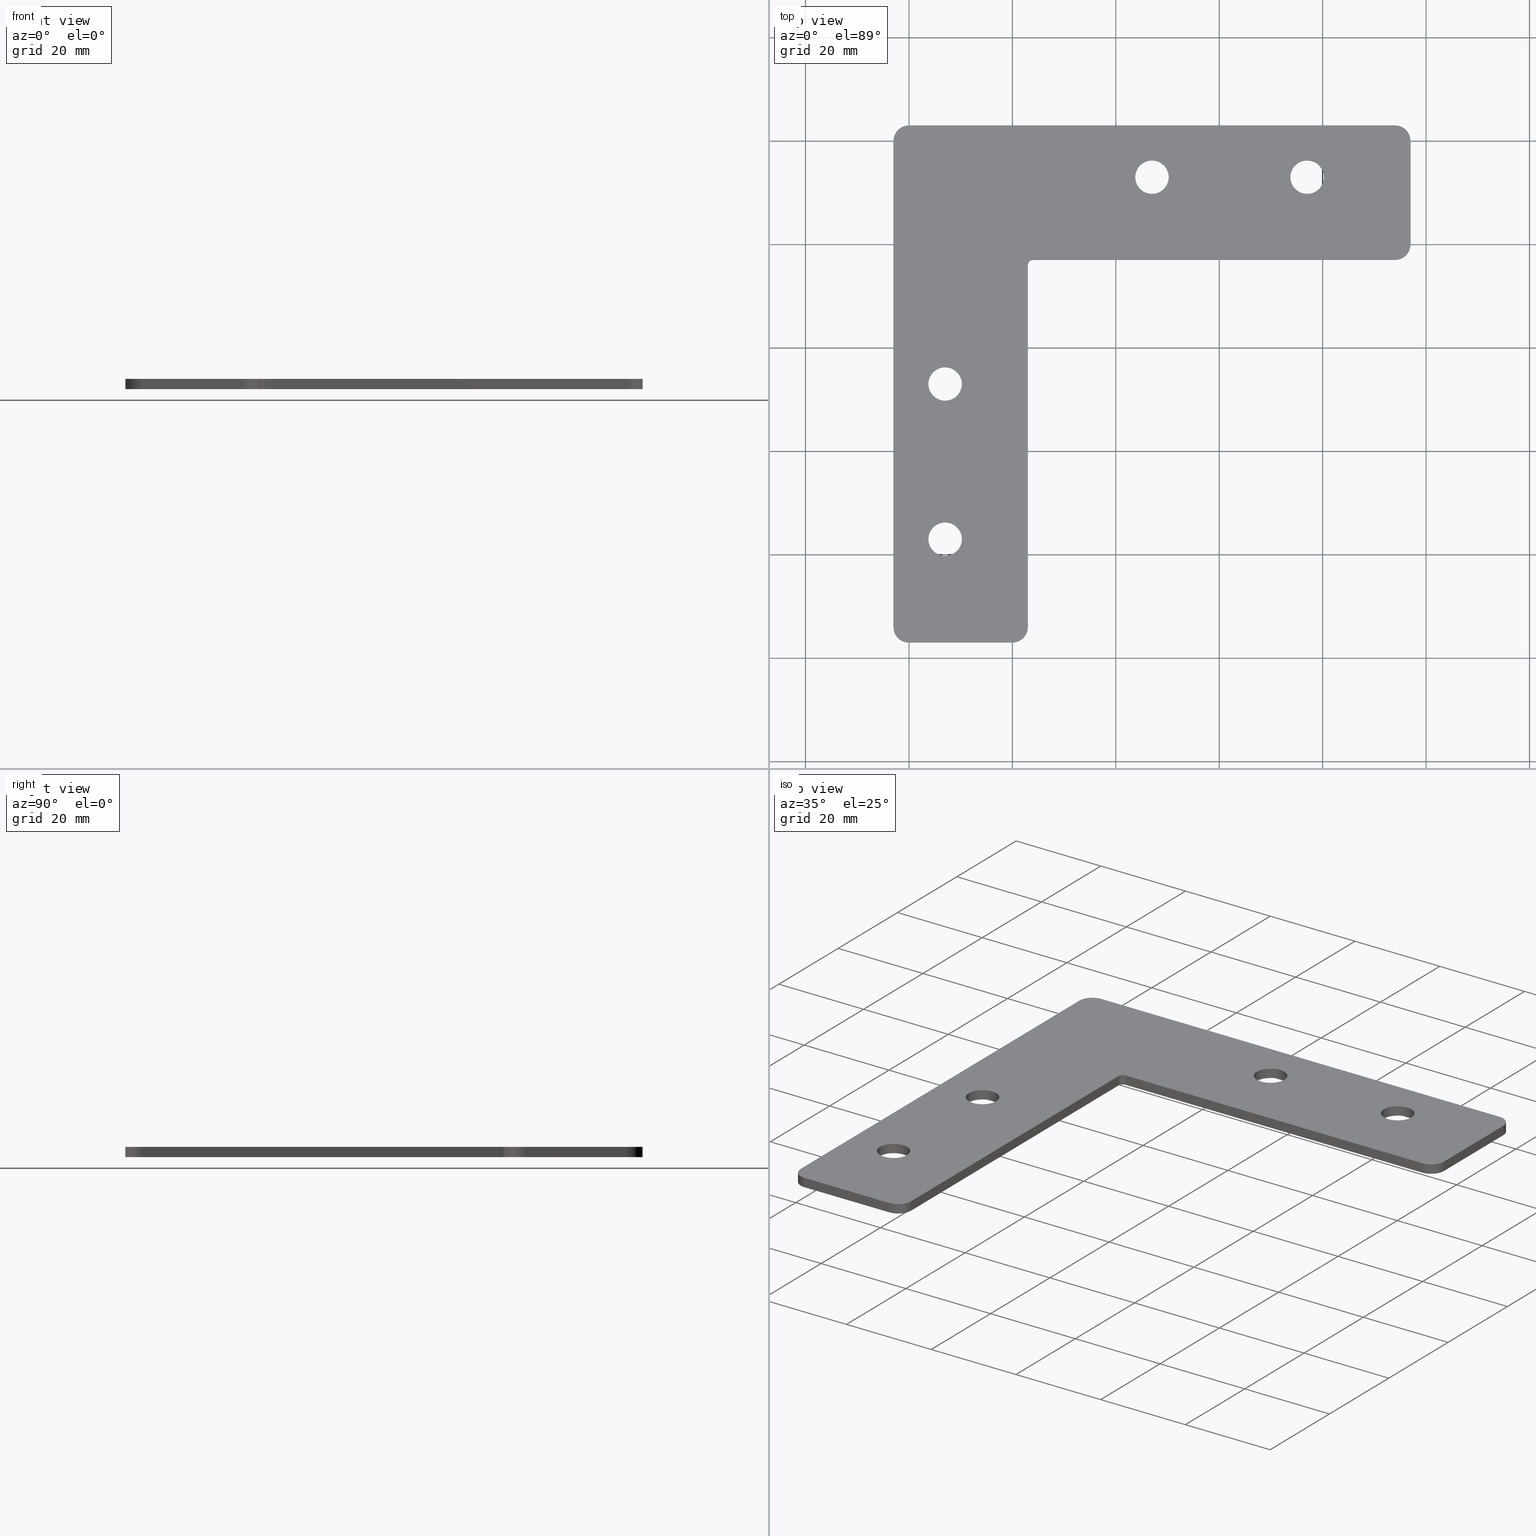
[diagram: canonical four-view strip — front | top / right | iso, engineering-drawing reading convention]
A machine part, canonical four-view strip (front | top / right | iso — engineering-drawing reading convention). The complete STEP part file that produces these views, byte-faithful:
ISO-10303-21;
HEADER;
/* Generated by software containing ST-Developer
 * from STEP Tools, Inc. (www.steptools.com) 
 */

FILE_DESCRIPTION(
/* description */ ('ANGOLARE DI RINFORZO 100X100 SP.2 ZINC.'),
/* implementation_level */ '2;1');

FILE_NAME(
/* name */ 
'C:\\Users\\tecnico7\\Desktop\\tavole temporanee\\DANXX0000097.stp',
/* time_stamp */ '2022-11-16T16:44:12+01:00',
/* author */ ('tecnico7'),
/* organization */ (''),
/* preprocessor_version */ 'ST-DEVELOPER v18.1',
/* originating_system */ 'Autodesk Inventor 2022',
/* authorisation */ '');

FILE_SCHEMA (('AUTOMOTIVE_DESIGN { 1 0 10303 214 3 1 1 }'));
ENDSEC;

DATA;
#10=MECHANICAL_DESIGN_GEOMETRIC_PRESENTATION_REPRESENTATION('',(#13),#624);
#11=SHAPE_REPRESENTATION_RELATIONSHIP('SRR','None',#631,#12);
#12=ADVANCED_BREP_SHAPE_REPRESENTATION('',(#14),#623);
#13=STYLED_ITEM('',(#640),#14);
#14=MANIFOLD_SOLID_BREP('Solido1',#355);
#15=FACE_BOUND('',#58,.T.);
#16=FACE_BOUND('',#59,.T.);
#17=FACE_BOUND('',#60,.T.);
#18=FACE_BOUND('',#61,.T.);
#19=FACE_BOUND('',#71,.T.);
#20=FACE_BOUND('',#72,.T.);
#21=FACE_BOUND('',#73,.T.);
#22=FACE_BOUND('',#74,.T.);
#23=PLANE('',#393);
#24=PLANE('',#397);
#25=PLANE('',#398);
#26=PLANE('',#407);
#27=PLANE('',#410);
#28=PLANE('',#413);
#29=PLANE('',#414);
#30=PLANE('',#415);
#31=FACE_OUTER_BOUND('',#49,.T.);
#32=FACE_OUTER_BOUND('',#50,.T.);
#33=FACE_OUTER_BOUND('',#51,.T.);
#34=FACE_OUTER_BOUND('',#52,.T.);
#35=FACE_OUTER_BOUND('',#53,.T.);
#36=FACE_OUTER_BOUND('',#54,.T.);
#37=FACE_OUTER_BOUND('',#55,.T.);
#38=FACE_OUTER_BOUND('',#56,.T.);
#39=FACE_OUTER_BOUND('',#57,.T.);
#40=FACE_OUTER_BOUND('',#62,.T.);
#41=FACE_OUTER_BOUND('',#63,.T.);
#42=FACE_OUTER_BOUND('',#64,.T.);
#43=FACE_OUTER_BOUND('',#65,.T.);
#44=FACE_OUTER_BOUND('',#66,.T.);
#45=FACE_OUTER_BOUND('',#67,.T.);
#46=FACE_OUTER_BOUND('',#68,.T.);
#47=FACE_OUTER_BOUND('',#69,.T.);
#48=FACE_OUTER_BOUND('',#70,.T.);
#49=EDGE_LOOP('',(#231,#232,#233,#234));
#50=EDGE_LOOP('',(#235,#236,#237,#238));
#51=EDGE_LOOP('',(#239,#240,#241,#242));
#52=EDGE_LOOP('',(#243,#244,#245,#246));
#53=EDGE_LOOP('',(#247,#248,#249,#250));
#54=EDGE_LOOP('',(#251,#252,#253,#254));
#55=EDGE_LOOP('',(#255,#256,#257,#258));
#56=EDGE_LOOP('',(#259,#260,#261,#262));
#57=EDGE_LOOP('',(#263,#264,#265,#266,#267,#268,#269,#270,#271,#272,#273,
#274));
#58=EDGE_LOOP('',(#275));
#59=EDGE_LOOP('',(#276));
#60=EDGE_LOOP('',(#277));
#61=EDGE_LOOP('',(#278));
#62=EDGE_LOOP('',(#279,#280,#281,#282));
#63=EDGE_LOOP('',(#283,#284,#285,#286));
#64=EDGE_LOOP('',(#287,#288,#289,#290));
#65=EDGE_LOOP('',(#291,#292,#293,#294));
#66=EDGE_LOOP('',(#295,#296,#297,#298));
#67=EDGE_LOOP('',(#299,#300,#301,#302));
#68=EDGE_LOOP('',(#303,#304,#305,#306));
#69=EDGE_LOOP('',(#307,#308,#309,#310));
#70=EDGE_LOOP('',(#311,#312,#313,#314,#315,#316,#317,#318,#319,#320,#321,
#322));
#71=EDGE_LOOP('',(#323));
#72=EDGE_LOOP('',(#324));
#73=EDGE_LOOP('',(#325));
#74=EDGE_LOOP('',(#326));
#75=LINE('',#527,#103);
#76=LINE('',#533,#104);
#77=LINE('',#539,#105);
#78=LINE('',#545,#106);
#79=LINE('',#552,#107);
#80=LINE('',#555,#108);
#81=LINE('',#558,#109);
#82=LINE('',#560,#110);
#83=LINE('',#561,#111);
#84=LINE('',#567,#112);
#85=LINE('',#570,#113);
#86=LINE('',#573,#114);
#87=LINE('',#575,#115);
#88=LINE('',#576,#116);
#89=LINE('',#579,#117);
#90=LINE('',#583,#118);
#91=LINE('',#587,#119);
#92=LINE('',#590,#120);
#93=LINE('',#598,#121);
#94=LINE('',#599,#122);
#95=LINE('',#601,#123);
#96=LINE('',#604,#124);
#97=LINE('',#607,#125);
#98=LINE('',#610,#126);
#99=LINE('',#611,#127);
#100=LINE('',#614,#128);
#101=LINE('',#617,#129);
#102=LINE('',#619,#130);
#103=VECTOR('',#422,3.25);
#104=VECTOR('',#429,3.25);
#105=VECTOR('',#436,3.25);
#106=VECTOR('',#443,3.25);
#107=VECTOR('',#450,10.);
#108=VECTOR('',#453,10.);
#109=VECTOR('',#456,10.);
#110=VECTOR('',#457,10.);
#111=VECTOR('',#458,10.);
#112=VECTOR('',#463,10.);
#113=VECTOR('',#466,10.);
#114=VECTOR('',#469,10.);
#115=VECTOR('',#470,10.);
#116=VECTOR('',#471,10.);
#117=VECTOR('',#474,10.);
#118=VECTOR('',#477,10.);
#119=VECTOR('',#480,10.);
#120=VECTOR('',#483,10.);
#121=VECTOR('',#494,10.);
#122=VECTOR('',#495,10.);
#123=VECTOR('',#498,10.);
#124=VECTOR('',#501,10.);
#125=VECTOR('',#504,10.);
#126=VECTOR('',#507,10.);
#127=VECTOR('',#508,10.);
#128=VECTOR('',#511,10.);
#129=VECTOR('',#516,10.);
#130=VECTOR('',#519,10.);
#131=CIRCLE('',#379,3.25);
#132=CIRCLE('',#380,3.25);
#133=CIRCLE('',#382,3.25);
#134=CIRCLE('',#383,3.25);
#135=CIRCLE('',#385,3.25);
#136=CIRCLE('',#386,3.25);
#137=CIRCLE('',#388,3.25);
#138=CIRCLE('',#389,3.25);
#139=CIRCLE('',#391,1.);
#140=CIRCLE('',#392,1.);
#141=CIRCLE('',#395,3.);
#142=CIRCLE('',#396,3.);
#143=CIRCLE('',#399,3.);
#144=CIRCLE('',#400,3.);
#145=CIRCLE('',#401,3.);
#146=CIRCLE('',#402,3.);
#147=CIRCLE('',#404,3.);
#148=CIRCLE('',#406,3.);
#149=CIRCLE('',#409,3.);
#150=CIRCLE('',#412,3.);
#151=VERTEX_POINT('',#524);
#152=VERTEX_POINT('',#526);
#153=VERTEX_POINT('',#530);
#154=VERTEX_POINT('',#532);
#155=VERTEX_POINT('',#536);
#156=VERTEX_POINT('',#538);
#157=VERTEX_POINT('',#542);
#158=VERTEX_POINT('',#544);
#159=VERTEX_POINT('',#548);
#160=VERTEX_POINT('',#549);
#161=VERTEX_POINT('',#551);
#162=VERTEX_POINT('',#553);
#163=VERTEX_POINT('',#557);
#164=VERTEX_POINT('',#559);
#165=VERTEX_POINT('',#563);
#166=VERTEX_POINT('',#564);
#167=VERTEX_POINT('',#566);
#168=VERTEX_POINT('',#568);
#169=VERTEX_POINT('',#572);
#170=VERTEX_POINT('',#574);
#171=VERTEX_POINT('',#578);
#172=VERTEX_POINT('',#580);
#173=VERTEX_POINT('',#582);
#174=VERTEX_POINT('',#584);
#175=VERTEX_POINT('',#586);
#176=VERTEX_POINT('',#588);
#177=VERTEX_POINT('',#595);
#178=VERTEX_POINT('',#596);
#179=VERTEX_POINT('',#603);
#180=VERTEX_POINT('',#605);
#181=VERTEX_POINT('',#609);
#182=VERTEX_POINT('',#613);
#183=EDGE_CURVE('',#151,#151,#131,.T.);
#184=EDGE_CURVE('',#151,#152,#75,.T.);
#185=EDGE_CURVE('',#152,#152,#132,.T.);
#186=EDGE_CURVE('',#153,#153,#133,.T.);
#187=EDGE_CURVE('',#153,#154,#76,.T.);
#188=EDGE_CURVE('',#154,#154,#134,.T.);
#189=EDGE_CURVE('',#155,#155,#135,.T.);
#190=EDGE_CURVE('',#155,#156,#77,.T.);
#191=EDGE_CURVE('',#156,#156,#136,.T.);
#192=EDGE_CURVE('',#157,#157,#137,.T.);
#193=EDGE_CURVE('',#157,#158,#78,.T.);
#194=EDGE_CURVE('',#158,#158,#138,.T.);
#195=EDGE_CURVE('',#159,#160,#139,.T.);
#196=EDGE_CURVE('',#160,#161,#79,.T.);
#197=EDGE_CURVE('',#161,#162,#140,.T.);
#198=EDGE_CURVE('',#162,#159,#80,.T.);
#199=EDGE_CURVE('',#163,#160,#81,.T.);
#200=EDGE_CURVE('',#164,#163,#82,.T.);
#201=EDGE_CURVE('',#161,#164,#83,.T.);
#202=EDGE_CURVE('',#165,#166,#141,.T.);
#203=EDGE_CURVE('',#166,#167,#84,.T.);
#204=EDGE_CURVE('',#167,#168,#142,.T.);
#205=EDGE_CURVE('',#168,#165,#85,.T.);
#206=EDGE_CURVE('',#169,#166,#86,.T.);
#207=EDGE_CURVE('',#170,#169,#87,.T.);
#208=EDGE_CURVE('',#167,#170,#88,.T.);
#209=EDGE_CURVE('',#165,#171,#89,.T.);
#210=EDGE_CURVE('',#172,#171,#143,.T.);
#211=EDGE_CURVE('',#172,#173,#90,.T.);
#212=EDGE_CURVE('',#174,#173,#144,.T.);
#213=EDGE_CURVE('',#174,#175,#91,.T.);
#214=EDGE_CURVE('',#176,#175,#145,.T.);
#215=EDGE_CURVE('',#176,#162,#92,.T.);
#216=EDGE_CURVE('',#169,#164,#146,.T.);
#217=EDGE_CURVE('',#163,#170,#147,.T.);
#218=EDGE_CURVE('',#177,#178,#148,.T.);
#219=EDGE_CURVE('',#178,#172,#93,.T.);
#220=EDGE_CURVE('',#171,#177,#94,.T.);
#221=EDGE_CURVE('',#177,#168,#95,.T.);
#222=EDGE_CURVE('',#175,#179,#96,.T.);
#223=EDGE_CURVE('',#179,#180,#149,.T.);
#224=EDGE_CURVE('',#180,#176,#97,.T.);
#225=EDGE_CURVE('',#181,#174,#98,.T.);
#226=EDGE_CURVE('',#179,#181,#99,.T.);
#227=EDGE_CURVE('',#173,#182,#100,.T.);
#228=EDGE_CURVE('',#182,#181,#150,.T.);
#229=EDGE_CURVE('',#182,#178,#101,.T.);
#230=EDGE_CURVE('',#159,#180,#102,.T.);
#231=ORIENTED_EDGE('',*,*,#183,.F.);
#232=ORIENTED_EDGE('',*,*,#184,.T.);
#233=ORIENTED_EDGE('',*,*,#185,.F.);
#234=ORIENTED_EDGE('',*,*,#184,.F.);
#235=ORIENTED_EDGE('',*,*,#186,.F.);
#236=ORIENTED_EDGE('',*,*,#187,.T.);
#237=ORIENTED_EDGE('',*,*,#188,.F.);
#238=ORIENTED_EDGE('',*,*,#187,.F.);
#239=ORIENTED_EDGE('',*,*,#189,.F.);
#240=ORIENTED_EDGE('',*,*,#190,.T.);
#241=ORIENTED_EDGE('',*,*,#191,.F.);
#242=ORIENTED_EDGE('',*,*,#190,.F.);
#243=ORIENTED_EDGE('',*,*,#192,.F.);
#244=ORIENTED_EDGE('',*,*,#193,.T.);
#245=ORIENTED_EDGE('',*,*,#194,.F.);
#246=ORIENTED_EDGE('',*,*,#193,.F.);
#247=ORIENTED_EDGE('',*,*,#195,.T.);
#248=ORIENTED_EDGE('',*,*,#196,.T.);
#249=ORIENTED_EDGE('',*,*,#197,.T.);
#250=ORIENTED_EDGE('',*,*,#198,.T.);
#251=ORIENTED_EDGE('',*,*,#196,.F.);
#252=ORIENTED_EDGE('',*,*,#199,.F.);
#253=ORIENTED_EDGE('',*,*,#200,.F.);
#254=ORIENTED_EDGE('',*,*,#201,.F.);
#255=ORIENTED_EDGE('',*,*,#202,.T.);
#256=ORIENTED_EDGE('',*,*,#203,.T.);
#257=ORIENTED_EDGE('',*,*,#204,.T.);
#258=ORIENTED_EDGE('',*,*,#205,.T.);
#259=ORIENTED_EDGE('',*,*,#203,.F.);
#260=ORIENTED_EDGE('',*,*,#206,.F.);
#261=ORIENTED_EDGE('',*,*,#207,.F.);
#262=ORIENTED_EDGE('',*,*,#208,.F.);
#263=ORIENTED_EDGE('',*,*,#202,.F.);
#264=ORIENTED_EDGE('',*,*,#209,.T.);
#265=ORIENTED_EDGE('',*,*,#210,.F.);
#266=ORIENTED_EDGE('',*,*,#211,.T.);
#267=ORIENTED_EDGE('',*,*,#212,.F.);
#268=ORIENTED_EDGE('',*,*,#213,.T.);
#269=ORIENTED_EDGE('',*,*,#214,.F.);
#270=ORIENTED_EDGE('',*,*,#215,.T.);
#271=ORIENTED_EDGE('',*,*,#197,.F.);
#272=ORIENTED_EDGE('',*,*,#201,.T.);
#273=ORIENTED_EDGE('',*,*,#216,.F.);
#274=ORIENTED_EDGE('',*,*,#206,.T.);
#275=ORIENTED_EDGE('',*,*,#185,.T.);
#276=ORIENTED_EDGE('',*,*,#188,.T.);
#277=ORIENTED_EDGE('',*,*,#191,.T.);
#278=ORIENTED_EDGE('',*,*,#194,.T.);
#279=ORIENTED_EDGE('',*,*,#216,.T.);
#280=ORIENTED_EDGE('',*,*,#200,.T.);
#281=ORIENTED_EDGE('',*,*,#217,.T.);
#282=ORIENTED_EDGE('',*,*,#207,.T.);
#283=ORIENTED_EDGE('',*,*,#218,.T.);
#284=ORIENTED_EDGE('',*,*,#219,.T.);
#285=ORIENTED_EDGE('',*,*,#210,.T.);
#286=ORIENTED_EDGE('',*,*,#220,.T.);
#287=ORIENTED_EDGE('',*,*,#205,.F.);
#288=ORIENTED_EDGE('',*,*,#221,.F.);
#289=ORIENTED_EDGE('',*,*,#220,.F.);
#290=ORIENTED_EDGE('',*,*,#209,.F.);
#291=ORIENTED_EDGE('',*,*,#214,.T.);
#292=ORIENTED_EDGE('',*,*,#222,.T.);
#293=ORIENTED_EDGE('',*,*,#223,.T.);
#294=ORIENTED_EDGE('',*,*,#224,.T.);
#295=ORIENTED_EDGE('',*,*,#222,.F.);
#296=ORIENTED_EDGE('',*,*,#213,.F.);
#297=ORIENTED_EDGE('',*,*,#225,.F.);
#298=ORIENTED_EDGE('',*,*,#226,.F.);
#299=ORIENTED_EDGE('',*,*,#212,.T.);
#300=ORIENTED_EDGE('',*,*,#227,.T.);
#301=ORIENTED_EDGE('',*,*,#228,.T.);
#302=ORIENTED_EDGE('',*,*,#225,.T.);
#303=ORIENTED_EDGE('',*,*,#219,.F.);
#304=ORIENTED_EDGE('',*,*,#229,.F.);
#305=ORIENTED_EDGE('',*,*,#227,.F.);
#306=ORIENTED_EDGE('',*,*,#211,.F.);
#307=ORIENTED_EDGE('',*,*,#198,.F.);
#308=ORIENTED_EDGE('',*,*,#215,.F.);
#309=ORIENTED_EDGE('',*,*,#224,.F.);
#310=ORIENTED_EDGE('',*,*,#230,.F.);
#311=ORIENTED_EDGE('',*,*,#204,.F.);
#312=ORIENTED_EDGE('',*,*,#208,.T.);
#313=ORIENTED_EDGE('',*,*,#217,.F.);
#314=ORIENTED_EDGE('',*,*,#199,.T.);
#315=ORIENTED_EDGE('',*,*,#195,.F.);
#316=ORIENTED_EDGE('',*,*,#230,.T.);
#317=ORIENTED_EDGE('',*,*,#223,.F.);
#318=ORIENTED_EDGE('',*,*,#226,.T.);
#319=ORIENTED_EDGE('',*,*,#228,.F.);
#320=ORIENTED_EDGE('',*,*,#229,.T.);
#321=ORIENTED_EDGE('',*,*,#218,.F.);
#322=ORIENTED_EDGE('',*,*,#221,.T.);
#323=ORIENTED_EDGE('',*,*,#183,.T.);
#324=ORIENTED_EDGE('',*,*,#186,.T.);
#325=ORIENTED_EDGE('',*,*,#189,.T.);
#326=ORIENTED_EDGE('',*,*,#192,.T.);
#327=CYLINDRICAL_SURFACE('',#378,3.25);
#328=CYLINDRICAL_SURFACE('',#381,3.25);
#329=CYLINDRICAL_SURFACE('',#384,3.25);
#330=CYLINDRICAL_SURFACE('',#387,3.25);
#331=CYLINDRICAL_SURFACE('',#390,1.);
#332=CYLINDRICAL_SURFACE('',#394,3.);
#333=CYLINDRICAL_SURFACE('',#403,3.);
#334=CYLINDRICAL_SURFACE('',#405,3.);
#335=CYLINDRICAL_SURFACE('',#408,3.);
#336=CYLINDRICAL_SURFACE('',#411,3.);
#337=ADVANCED_FACE('',(#31),#327,.F.);
#338=ADVANCED_FACE('',(#32),#328,.F.);
#339=ADVANCED_FACE('',(#33),#329,.F.);
#340=ADVANCED_FACE('',(#34),#330,.F.);
#341=ADVANCED_FACE('',(#35),#331,.F.);
#342=ADVANCED_FACE('',(#36),#23,.T.);
#343=ADVANCED_FACE('',(#37),#332,.T.);
#344=ADVANCED_FACE('',(#38),#24,.T.);
#345=ADVANCED_FACE('',(#39,#15,#16,#17,#18),#25,.F.);
#346=ADVANCED_FACE('',(#40),#333,.T.);
#347=ADVANCED_FACE('',(#41),#334,.T.);
#348=ADVANCED_FACE('',(#42),#26,.T.);
#349=ADVANCED_FACE('',(#43),#335,.T.);
#350=ADVANCED_FACE('',(#44),#27,.T.);
#351=ADVANCED_FACE('',(#45),#336,.T.);
#352=ADVANCED_FACE('',(#46),#28,.T.);
#353=ADVANCED_FACE('',(#47),#29,.T.);
#354=ADVANCED_FACE('',(#48,#19,#20,#21,#22),#30,.T.);
#355=CLOSED_SHELL('',(#337,#338,#339,#340,#341,#342,#343,#344,#345,#346,
#347,#348,#349,#350,#351,#352,#353,#354));
#356=DERIVED_UNIT_ELEMENT(#359,1.);
#357=DERIVED_UNIT_ELEMENT(#626,-3.);
#358=DIMENSIONAL_EXPONENTS(1.,0.,0.,0.,0.,0.,0.);
#359=(
CONVERSION_BASED_UNIT('gram',#361)
MASS_UNIT()
NAMED_UNIT(#358)
);
#360=(
MASS_UNIT()
NAMED_UNIT(*)
SI_UNIT(.KILO.,.GRAM.)
);
#361=MASS_MEASURE_WITH_UNIT(MASS_MEASURE(0.001),#360);
#362=DERIVED_UNIT((#356,#357));
#363=MEASURE_REPRESENTATION_ITEM('density measure',
POSITIVE_RATIO_MEASURE(7.85),#362);
#364=PROPERTY_DEFINITION_REPRESENTATION(#369,#366);
#365=PROPERTY_DEFINITION_REPRESENTATION(#370,#367);
#366=REPRESENTATION('material name',(#368),#623);
#367=REPRESENTATION('density',(#363),#623);
#368=DESCRIPTIVE_REPRESENTATION_ITEM('Acciaio S355JR','Acciaio S355JR');
#369=PROPERTY_DEFINITION('material property','material name',#633);
#370=PROPERTY_DEFINITION('material property','density of part',#633);
#371=DATE_TIME_ROLE('creation_date');
#372=APPLIED_DATE_AND_TIME_ASSIGNMENT(#373,#371,(#633));
#373=DATE_AND_TIME(#374,#375);
#374=CALENDAR_DATE(2013,3,6);
#375=LOCAL_TIME(0,0,0.,#376);
#376=COORDINATED_UNIVERSAL_TIME_OFFSET(0,0,.BEHIND.);
#377=AXIS2_PLACEMENT_3D('placement',#522,#416,#417);
#378=AXIS2_PLACEMENT_3D('',#523,#418,#419);
#379=AXIS2_PLACEMENT_3D('',#525,#420,#421);
#380=AXIS2_PLACEMENT_3D('',#528,#423,#424);
#381=AXIS2_PLACEMENT_3D('',#529,#425,#426);
#382=AXIS2_PLACEMENT_3D('',#531,#427,#428);
#383=AXIS2_PLACEMENT_3D('',#534,#430,#431);
#384=AXIS2_PLACEMENT_3D('',#535,#432,#433);
#385=AXIS2_PLACEMENT_3D('',#537,#434,#435);
#386=AXIS2_PLACEMENT_3D('',#540,#437,#438);
#387=AXIS2_PLACEMENT_3D('',#541,#439,#440);
#388=AXIS2_PLACEMENT_3D('',#543,#441,#442);
#389=AXIS2_PLACEMENT_3D('',#546,#444,#445);
#390=AXIS2_PLACEMENT_3D('',#547,#446,#447);
#391=AXIS2_PLACEMENT_3D('',#550,#448,#449);
#392=AXIS2_PLACEMENT_3D('',#554,#451,#452);
#393=AXIS2_PLACEMENT_3D('',#556,#454,#455);
#394=AXIS2_PLACEMENT_3D('',#562,#459,#460);
#395=AXIS2_PLACEMENT_3D('',#565,#461,#462);
#396=AXIS2_PLACEMENT_3D('',#569,#464,#465);
#397=AXIS2_PLACEMENT_3D('',#571,#467,#468);
#398=AXIS2_PLACEMENT_3D('',#577,#472,#473);
#399=AXIS2_PLACEMENT_3D('',#581,#475,#476);
#400=AXIS2_PLACEMENT_3D('',#585,#478,#479);
#401=AXIS2_PLACEMENT_3D('',#589,#481,#482);
#402=AXIS2_PLACEMENT_3D('',#591,#484,#485);
#403=AXIS2_PLACEMENT_3D('',#592,#486,#487);
#404=AXIS2_PLACEMENT_3D('',#593,#488,#489);
#405=AXIS2_PLACEMENT_3D('',#594,#490,#491);
#406=AXIS2_PLACEMENT_3D('',#597,#492,#493);
#407=AXIS2_PLACEMENT_3D('',#600,#496,#497);
#408=AXIS2_PLACEMENT_3D('',#602,#499,#500);
#409=AXIS2_PLACEMENT_3D('',#606,#502,#503);
#410=AXIS2_PLACEMENT_3D('',#608,#505,#506);
#411=AXIS2_PLACEMENT_3D('',#612,#509,#510);
#412=AXIS2_PLACEMENT_3D('',#615,#512,#513);
#413=AXIS2_PLACEMENT_3D('',#616,#514,#515);
#414=AXIS2_PLACEMENT_3D('',#618,#517,#518);
#415=AXIS2_PLACEMENT_3D('',#620,#520,#521);
#416=DIRECTION('axis',(0.,0.,1.));
#417=DIRECTION('refdir',(1.,0.,0.));
#418=DIRECTION('center_axis',(0.,0.,1.));
#419=DIRECTION('ref_axis',(1.,0.,0.));
#420=DIRECTION('center_axis',(0.,0.,-1.));
#421=DIRECTION('ref_axis',(1.,0.,0.));
#422=DIRECTION('',(0.,0.,-1.));
#423=DIRECTION('center_axis',(0.,0.,1.));
#424=DIRECTION('ref_axis',(1.,0.,0.));
#425=DIRECTION('center_axis',(0.,0.,1.));
#426=DIRECTION('ref_axis',(1.,0.,0.));
#427=DIRECTION('center_axis',(0.,0.,-1.));
#428=DIRECTION('ref_axis',(1.,0.,0.));
#429=DIRECTION('',(0.,0.,-1.));
#430=DIRECTION('center_axis',(0.,0.,1.));
#431=DIRECTION('ref_axis',(1.,0.,0.));
#432=DIRECTION('center_axis',(0.,0.,1.));
#433=DIRECTION('ref_axis',(1.,0.,0.));
#434=DIRECTION('center_axis',(0.,0.,-1.));
#435=DIRECTION('ref_axis',(1.,0.,0.));
#436=DIRECTION('',(0.,0.,-1.));
#437=DIRECTION('center_axis',(0.,0.,1.));
#438=DIRECTION('ref_axis',(1.,0.,0.));
#439=DIRECTION('center_axis',(0.,0.,1.));
#440=DIRECTION('ref_axis',(1.,0.,0.));
#441=DIRECTION('center_axis',(0.,0.,-1.));
#442=DIRECTION('ref_axis',(1.,0.,0.));
#443=DIRECTION('',(0.,0.,-1.));
#444=DIRECTION('center_axis',(0.,0.,1.));
#445=DIRECTION('ref_axis',(1.,0.,0.));
#446=DIRECTION('center_axis',(0.,0.,-1.));
#447=DIRECTION('ref_axis',(-0.707106781186551,0.707106781186544,0.));
#448=DIRECTION('center_axis',(0.,0.,1.));
#449=DIRECTION('ref_axis',(-0.707106781186551,0.707106781186544,0.));
#450=DIRECTION('',(0.,0.,-1.));
#451=DIRECTION('center_axis',(0.,0.,-1.));
#452=DIRECTION('ref_axis',(-0.707106781186551,0.707106781186544,0.));
#453=DIRECTION('',(0.,0.,1.));
#454=DIRECTION('center_axis',(1.,0.,0.));
#455=DIRECTION('ref_axis',(0.,1.,0.));
#456=DIRECTION('',(0.,1.,0.));
#457=DIRECTION('',(0.,0.,1.));
#458=DIRECTION('',(0.,-1.,0.));
#459=DIRECTION('center_axis',(0.,0.,-1.));
#460=DIRECTION('ref_axis',(-0.707106781186547,-0.707106781186548,0.));
#461=DIRECTION('center_axis',(0.,0.,1.));
#462=DIRECTION('ref_axis',(-0.707106781186547,-0.707106781186548,0.));
#463=DIRECTION('',(0.,0.,1.));
#464=DIRECTION('center_axis',(0.,0.,-1.));
#465=DIRECTION('ref_axis',(-0.707106781186547,-0.707106781186548,0.));
#466=DIRECTION('',(0.,0.,-1.));
#467=DIRECTION('center_axis',(0.,-1.,0.));
#468=DIRECTION('ref_axis',(1.,0.,0.));
#469=DIRECTION('',(-1.,0.,0.));
#470=DIRECTION('',(0.,0.,-1.));
#471=DIRECTION('',(1.,0.,0.));
#472=DIRECTION('center_axis',(0.,0.,1.));
#473=DIRECTION('ref_axis',(1.,0.,0.));
#474=DIRECTION('',(5.32907051820075E-16,1.,0.));
#475=DIRECTION('center_axis',(0.,0.,1.));
#476=DIRECTION('ref_axis',(-0.707106781186548,0.707106781186548,0.));
#477=DIRECTION('',(1.,0.,0.));
#478=DIRECTION('center_axis',(0.,0.,1.));
#479=DIRECTION('ref_axis',(0.707106781186546,0.707106781186549,0.));
#480=DIRECTION('',(3.41607084500048E-16,-1.,0.));
#481=DIRECTION('center_axis',(0.,0.,1.));
#482=DIRECTION('ref_axis',(0.707106781186547,-0.707106781186547,0.));
#483=DIRECTION('',(-1.,0.,0.));
#484=DIRECTION('center_axis',(0.,0.,1.));
#485=DIRECTION('ref_axis',(0.707106781186547,-0.707106781186548,0.));
#486=DIRECTION('center_axis',(0.,0.,-1.));
#487=DIRECTION('ref_axis',(0.707106781186547,-0.707106781186548,0.));
#488=DIRECTION('center_axis',(0.,0.,-1.));
#489=DIRECTION('ref_axis',(0.707106781186547,-0.707106781186548,0.));
#490=DIRECTION('center_axis',(0.,0.,1.));
#491=DIRECTION('ref_axis',(-0.707106781186548,0.707106781186548,0.));
#492=DIRECTION('center_axis',(0.,0.,-1.));
#493=DIRECTION('ref_axis',(-0.707106781186548,0.707106781186548,0.));
#494=DIRECTION('',(0.,0.,-1.));
#495=DIRECTION('',(0.,0.,1.));
#496=DIRECTION('center_axis',(-1.,5.32907051820075E-16,0.));
#497=DIRECTION('ref_axis',(-5.32907051820075E-16,-1.,0.));
#498=DIRECTION('',(-5.32907051820075E-16,-1.,0.));
#499=DIRECTION('center_axis',(0.,0.,-1.));
#500=DIRECTION('ref_axis',(0.707106781186547,-0.707106781186547,0.));
#501=DIRECTION('',(0.,0.,1.));
#502=DIRECTION('center_axis',(0.,0.,-1.));
#503=DIRECTION('ref_axis',(0.707106781186547,-0.707106781186547,0.));
#504=DIRECTION('',(0.,0.,-1.));
#505=DIRECTION('center_axis',(1.,3.41607084500048E-16,0.));
#506=DIRECTION('ref_axis',(-3.41607084500048E-16,1.,0.));
#507=DIRECTION('',(0.,0.,-1.));
#508=DIRECTION('',(-3.41607084500048E-16,1.,0.));
#509=DIRECTION('center_axis',(0.,0.,-1.));
#510=DIRECTION('ref_axis',(0.707106781186546,0.707106781186549,0.));
#511=DIRECTION('',(0.,0.,1.));
#512=DIRECTION('center_axis',(0.,0.,-1.));
#513=DIRECTION('ref_axis',(0.707106781186546,0.707106781186549,0.));
#514=DIRECTION('center_axis',(0.,1.,0.));
#515=DIRECTION('ref_axis',(-1.,0.,0.));
#516=DIRECTION('',(-1.,0.,0.));
#517=DIRECTION('center_axis',(0.,-1.,0.));
#518=DIRECTION('ref_axis',(1.,0.,0.));
#519=DIRECTION('',(1.,0.,0.));
#520=DIRECTION('center_axis',(0.,0.,1.));
#521=DIRECTION('ref_axis',(1.,0.,0.));
#522=CARTESIAN_POINT('',(0.,0.,0.));
#523=CARTESIAN_POINT('Origin',(-53.,-17.,-140.435497665897));
#524=CARTESIAN_POINT('',(-56.25,-17.,0.999999999999996));
#525=CARTESIAN_POINT('Origin',(-53.,-17.,0.999999999999996));
#526=CARTESIAN_POINT('',(-56.25,-17.,-0.999999999999996));
#527=CARTESIAN_POINT('',(-56.25,-17.,-140.435497665897));
#528=CARTESIAN_POINT('Origin',(-53.,-17.,-0.999999999999996));
#529=CARTESIAN_POINT('Origin',(17.,53.,-140.435497665897));
#530=CARTESIAN_POINT('',(13.75,53.,0.999999999999996));
#531=CARTESIAN_POINT('Origin',(17.,53.,0.999999999999996));
#532=CARTESIAN_POINT('',(13.75,53.,-0.999999999999996));
#533=CARTESIAN_POINT('',(13.75,53.,-140.435497665897));
#534=CARTESIAN_POINT('Origin',(17.,53.,-0.999999999999996));
#535=CARTESIAN_POINT('Origin',(-13.,53.,-140.435497665897));
#536=CARTESIAN_POINT('',(-16.25,53.,0.999999999999996));
#537=CARTESIAN_POINT('Origin',(-13.,53.,0.999999999999996));
#538=CARTESIAN_POINT('',(-16.25,53.,-0.999999999999996));
#539=CARTESIAN_POINT('',(-16.25,53.,-140.435497665897));
#540=CARTESIAN_POINT('Origin',(-13.,53.,-0.999999999999996));
#541=CARTESIAN_POINT('Origin',(-53.,13.,-140.435497665897));
#542=CARTESIAN_POINT('',(-56.25,13.,0.999999999999996));
#543=CARTESIAN_POINT('Origin',(-53.,13.,0.999999999999996));
#544=CARTESIAN_POINT('',(-56.25,13.,-0.999999999999996));
#545=CARTESIAN_POINT('',(-56.25,13.,-140.435497665897));
#546=CARTESIAN_POINT('Origin',(-53.,13.,-0.999999999999996));
#547=CARTESIAN_POINT('Origin',(-36.,36.,0.));
#548=CARTESIAN_POINT('',(-36.,37.,1.));
#549=CARTESIAN_POINT('',(-37.,36.,1.));
#550=CARTESIAN_POINT('Origin',(-36.,36.,1.));
#551=CARTESIAN_POINT('',(-37.,36.,-1.));
#552=CARTESIAN_POINT('',(-37.,36.,0.));
#553=CARTESIAN_POINT('',(-36.,37.,-1.));
#554=CARTESIAN_POINT('Origin',(-36.,36.,-1.));
#555=CARTESIAN_POINT('',(-36.,37.,0.));
#556=CARTESIAN_POINT('Origin',(-37.,-37.,0.));
#557=CARTESIAN_POINT('',(-37.,-34.,1.));
#558=CARTESIAN_POINT('',(-37.,37.,1.));
#559=CARTESIAN_POINT('',(-37.,-34.,-1.));
#560=CARTESIAN_POINT('',(-37.,-34.,0.));
#561=CARTESIAN_POINT('',(-37.,37.,-1.));
#562=CARTESIAN_POINT('Origin',(-60.,-34.,0.));
#563=CARTESIAN_POINT('',(-63.,-34.,-1.));
#564=CARTESIAN_POINT('',(-60.,-37.,-1.));
#565=CARTESIAN_POINT('Origin',(-60.,-34.,-1.));
#566=CARTESIAN_POINT('',(-60.,-37.,1.));
#567=CARTESIAN_POINT('',(-60.,-37.,0.));
#568=CARTESIAN_POINT('',(-63.,-34.,1.));
#569=CARTESIAN_POINT('Origin',(-60.,-34.,1.));
#570=CARTESIAN_POINT('',(-63.,-34.,0.));
#571=CARTESIAN_POINT('Origin',(-63.,-37.,0.));
#572=CARTESIAN_POINT('',(-40.,-37.,-1.));
#573=CARTESIAN_POINT('',(-37.,-37.,-1.));
#574=CARTESIAN_POINT('',(-40.,-37.,1.));
#575=CARTESIAN_POINT('',(-40.,-37.,0.));
#576=CARTESIAN_POINT('',(-37.,-37.,1.));
#577=CARTESIAN_POINT('Origin',(-26.69,26.69,-1.));
#578=CARTESIAN_POINT('',(-63.,60.,-1.));
#579=CARTESIAN_POINT('',(-63.,-37.,-1.));
#580=CARTESIAN_POINT('',(-60.,63.,-1.));
#581=CARTESIAN_POINT('Origin',(-60.,60.,-1.));
#582=CARTESIAN_POINT('',(34.,63.,-1.));
#583=CARTESIAN_POINT('',(-63.,63.,-1.));
#584=CARTESIAN_POINT('',(37.,60.,-1.));
#585=CARTESIAN_POINT('Origin',(34.,60.,-1.));
#586=CARTESIAN_POINT('',(37.,40.,-1.));
#587=CARTESIAN_POINT('',(37.,63.,-1.));
#588=CARTESIAN_POINT('',(34.,37.,-1.));
#589=CARTESIAN_POINT('Origin',(34.,40.,-1.));
#590=CARTESIAN_POINT('',(37.,37.,-1.));
#591=CARTESIAN_POINT('Origin',(-40.,-34.,-1.));
#592=CARTESIAN_POINT('Origin',(-40.,-34.,0.));
#593=CARTESIAN_POINT('Origin',(-40.,-34.,1.));
#594=CARTESIAN_POINT('Origin',(-60.,60.,0.));
#595=CARTESIAN_POINT('',(-63.,60.,1.));
#596=CARTESIAN_POINT('',(-60.,63.,1.));
#597=CARTESIAN_POINT('Origin',(-60.,60.,1.));
#598=CARTESIAN_POINT('',(-60.,63.,0.));
#599=CARTESIAN_POINT('',(-63.,60.,0.));
#600=CARTESIAN_POINT('Origin',(-63.,63.,0.));
#601=CARTESIAN_POINT('',(-63.,-37.,1.));
#602=CARTESIAN_POINT('Origin',(34.,40.,0.));
#603=CARTESIAN_POINT('',(37.,40.,1.));
#604=CARTESIAN_POINT('',(37.,40.,0.));
#605=CARTESIAN_POINT('',(34.,37.,1.));
#606=CARTESIAN_POINT('Origin',(34.,40.,1.));
#607=CARTESIAN_POINT('',(34.,37.,0.));
#608=CARTESIAN_POINT('Origin',(37.,37.,0.));
#609=CARTESIAN_POINT('',(37.,60.,1.));
#610=CARTESIAN_POINT('',(37.,60.,0.));
#611=CARTESIAN_POINT('',(37.,63.,1.));
#612=CARTESIAN_POINT('Origin',(34.,60.,0.));
#613=CARTESIAN_POINT('',(34.,63.,1.));
#614=CARTESIAN_POINT('',(34.,63.,0.));
#615=CARTESIAN_POINT('Origin',(34.,60.,1.));
#616=CARTESIAN_POINT('Origin',(37.,63.,0.));
#617=CARTESIAN_POINT('',(-63.,63.,1.));
#618=CARTESIAN_POINT('Origin',(-37.,37.,0.));
#619=CARTESIAN_POINT('',(37.,37.,1.));
#620=CARTESIAN_POINT('Origin',(-26.69,26.69,1.));
#621=UNCERTAINTY_MEASURE_WITH_UNIT(LENGTH_MEASURE(0.01),#625,
'DISTANCE_ACCURACY_VALUE',
'Maximum model space distance between geometric entities at asserted c
onnectivities');
#622=UNCERTAINTY_MEASURE_WITH_UNIT(LENGTH_MEASURE(0.01),#625,
'DISTANCE_ACCURACY_VALUE',
'Maximum model space distance between geometric entities at asserted c
onnectivities');
#623=(
GEOMETRIC_REPRESENTATION_CONTEXT(3)
GLOBAL_UNCERTAINTY_ASSIGNED_CONTEXT((#621))
GLOBAL_UNIT_ASSIGNED_CONTEXT((#625,#627,#628))
REPRESENTATION_CONTEXT('','3D')
);
#624=(
GEOMETRIC_REPRESENTATION_CONTEXT(3)
GLOBAL_UNCERTAINTY_ASSIGNED_CONTEXT((#622))
GLOBAL_UNIT_ASSIGNED_CONTEXT((#625,#627,#628))
REPRESENTATION_CONTEXT('','3D')
);
#625=(
LENGTH_UNIT()
NAMED_UNIT(*)
SI_UNIT(.MILLI.,.METRE.)
);
#626=(
LENGTH_UNIT()
NAMED_UNIT(*)
SI_UNIT(.CENTI.,.METRE.)
);
#627=(
NAMED_UNIT(*)
PLANE_ANGLE_UNIT()
SI_UNIT($,.RADIAN.)
);
#628=(
NAMED_UNIT(*)
SI_UNIT($,.STERADIAN.)
SOLID_ANGLE_UNIT()
);
#629=SHAPE_DEFINITION_REPRESENTATION(#630,#631);
#630=PRODUCT_DEFINITION_SHAPE('',$,#633);
#631=SHAPE_REPRESENTATION('',(#377),#623);
#632=PRODUCT_DEFINITION_CONTEXT('part definition',#637,'design');
#633=PRODUCT_DEFINITION('DANXX0000097','DANXX0000097',#634,#632);
#634=PRODUCT_DEFINITION_FORMATION('A',$,#639);
#635=PRODUCT_RELATED_PRODUCT_CATEGORY('DANXX0000097','DANXX0000097',(#639));
#636=APPLICATION_PROTOCOL_DEFINITION('international standard',
'automotive_design',2009,#637);
#637=APPLICATION_CONTEXT(
'Core Data for Automotive Mechanical Design Process');
#638=PRODUCT_CONTEXT('part definition',#637,'mechanical');
#639=PRODUCT('DANXX0000097','DANXX0000097',
'ANGOLARE DI RINFORZO 100X100 SP.2 ZINC.',(#638));
#640=PRESENTATION_STYLE_ASSIGNMENT((#641));
#641=SURFACE_STYLE_USAGE(.BOTH.,#644);
#642=SURFACE_STYLE_RENDERING_WITH_PROPERTIES($,#648,(#643));
#643=SURFACE_STYLE_TRANSPARENT(0.);
#644=SURFACE_SIDE_STYLE('',(#645,#642));
#645=SURFACE_STYLE_FILL_AREA(#646);
#646=FILL_AREA_STYLE('',(#647));
#647=FILL_AREA_STYLE_COLOUR('',#648);
#648=COLOUR_RGB('',0.83921568627451,0.886274509803922,0.854901960784314);
ENDSEC;
END-ISO-10303-21;
